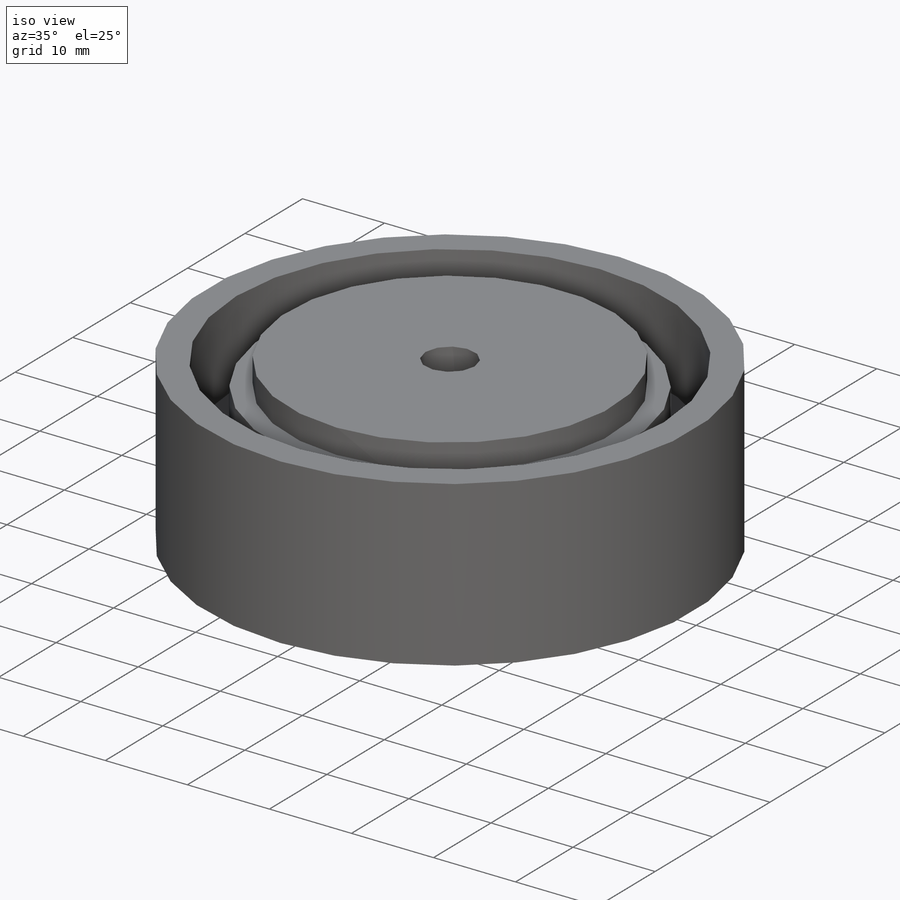
[diagram: iso view]
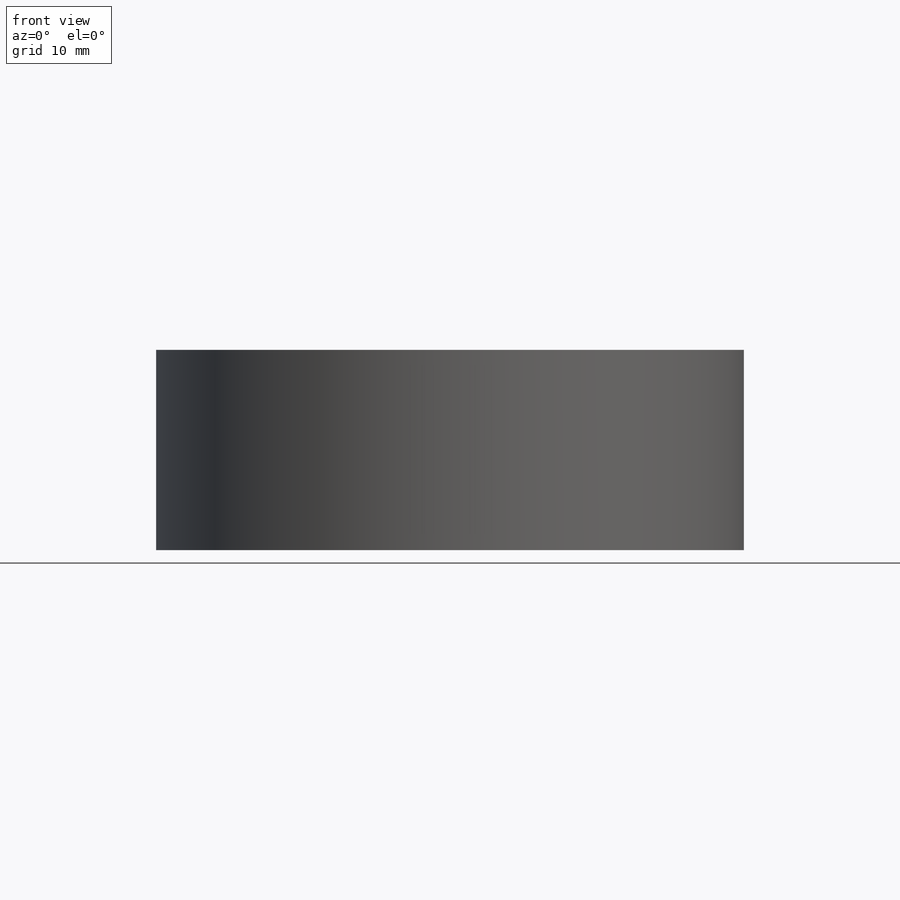
[diagram: front view]
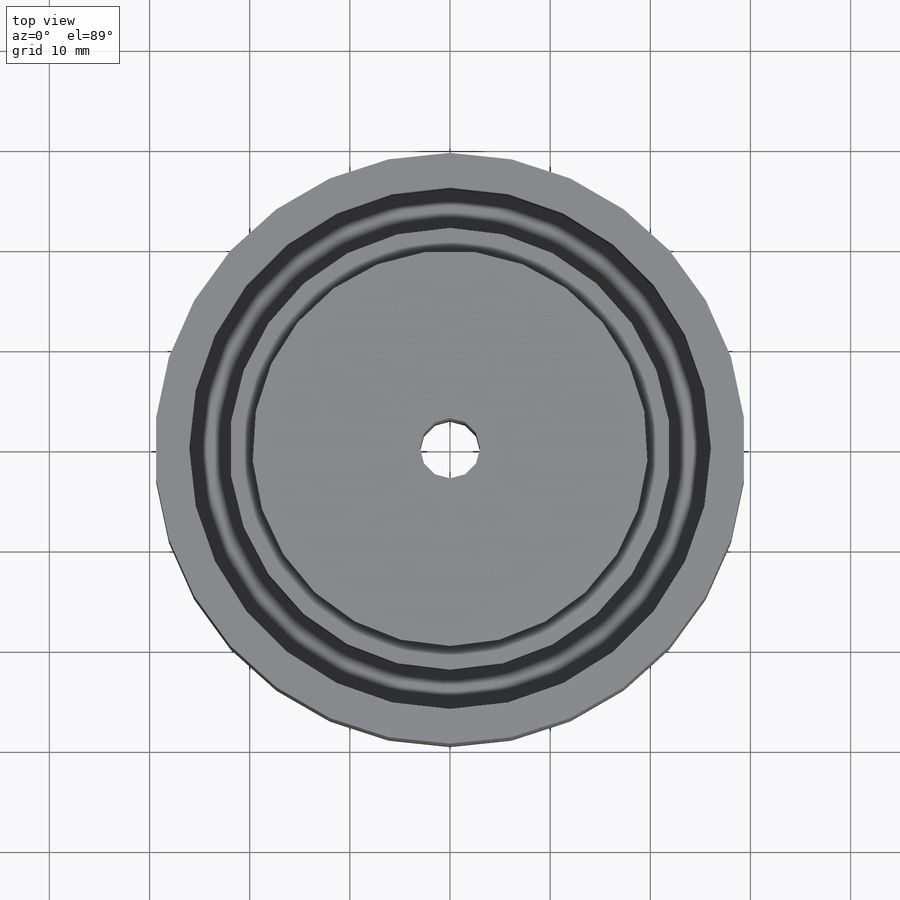
[diagram: top view]
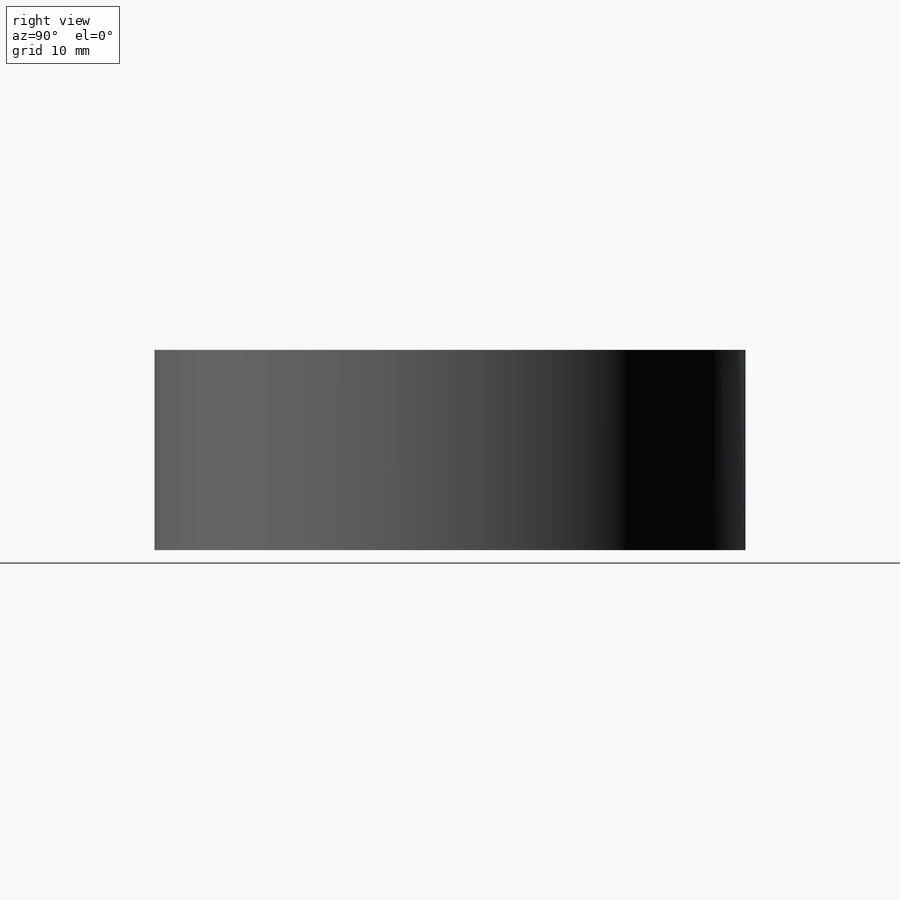
[diagram: right view]
SOLIDWORKS PART (.sldprt)
format: sldprt  version: not decoded by parser v0  size: 261,632 bytes
history: native  units: mm
features: sketch x6, cut_extrude x3, extrude x2, chamfer x2, material x1, fillet x1 (+13 scaffold rows collapsed)
feature tree (28):
  scaffold x13  (default folders/planes/origin — collapsed)
  material  "Material <not specified>"
  sketch  "Sketch1"  dims[D2=3.0mm D3=6.0mm D4=59.0mm D1=31.1mm]
  extrude  "Boss-Extrude1"  Depth=20mm
  sketch  "Sketch2"  dims[D2=6.0mm D3=4.5mm D1=34.0mm D4=31.1mm]
  cut_extrude  "Cut-Extrude1"  Depth=3mm
  sketch  "Sketch3"  dims[D1=6.0mm]
  cut_extrude  "Cut-Extrude2"  [1 undecoded]
  sketch  "Sketch2<5>"  dims[D1=6.0mm]
  fillet  "Fillet1"  Radius=3mm
  sketch  "Sketch4"
  extrude  "Boss-Extrude2"  Depth=11mm
  chamfer  "Chamfer1"  Distance=5mm Angle=45deg
  sketch  "Sketch5"
  cut_extrude  "Cut-Extrude3"  Depth=10mm
  chamfer  "Chamfer2"  Distance=6mm Angle=34deg
decode coverage: 11 of 14 modeling features carry decoded parameters
note: 1 parameter value undecoded
note: suppression state not decoded; provenance and decode notes live in map.json
